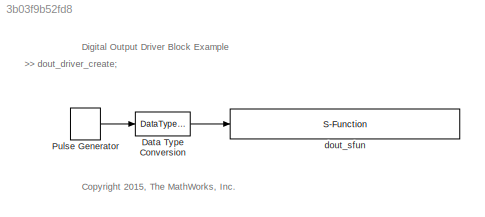
MODEL slx_3b03f9b52fd8
KIND model
BLOCK [DataTypeConversion] Data Type Conversion
  RndMeth = Floor
  SaturateOnIntegerOverflow = off
BLOCK [DiscretePulseGenerator] Pulse Generator
  Period = 10
  Ports = [0, 1]
  PulseWidth = 5
  SampleTime = 0.1
BLOCK [S-Function] dout_sfun
  FunctionName = dout_sfun
  Parameters = SParameter1
  Ports = [1]
ANNOTATION (root): >> dout_driver_create;
ANNOTATION (root): <copyright redacted>
ANNOTATION (root): Digital Output Driver Block Example
LINE Data Type Conversion:1 -> dout_sfun:1
LINE Pulse Generator:1 -> Data Type Conversion:1
